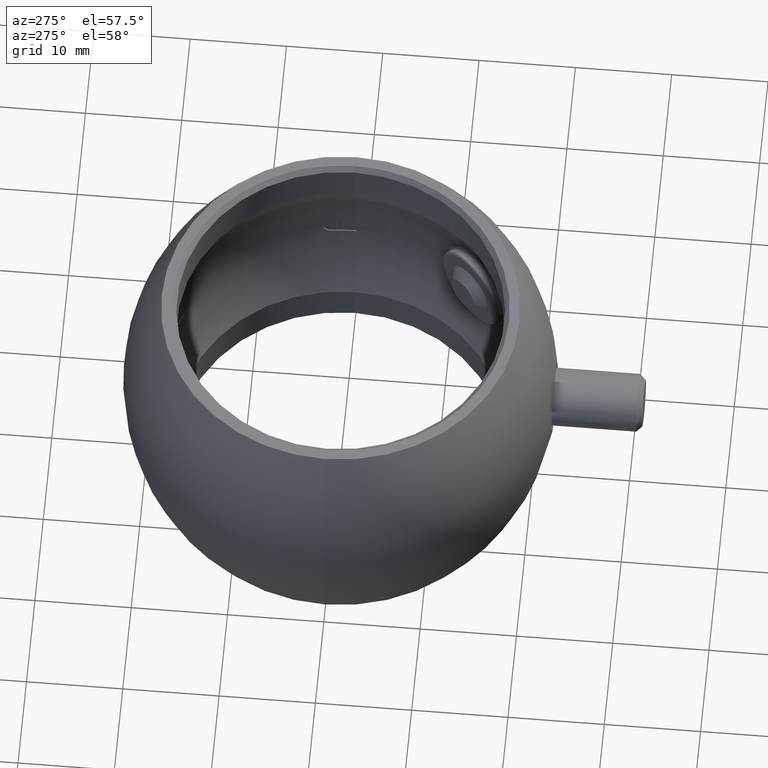
[diagram: clean part render]
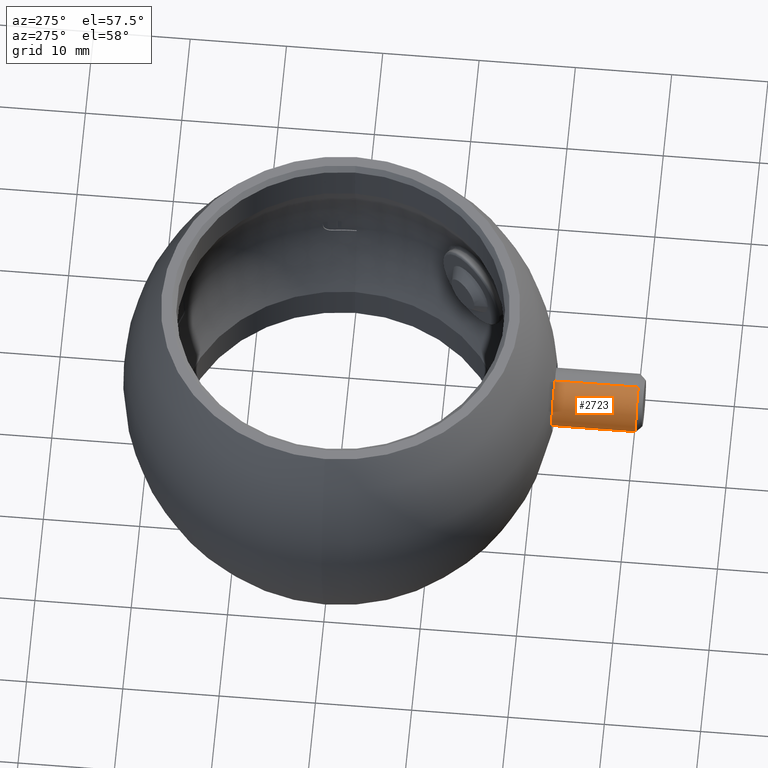
[diagram: same view with one face highlighted and labeled with its STEP entity id]
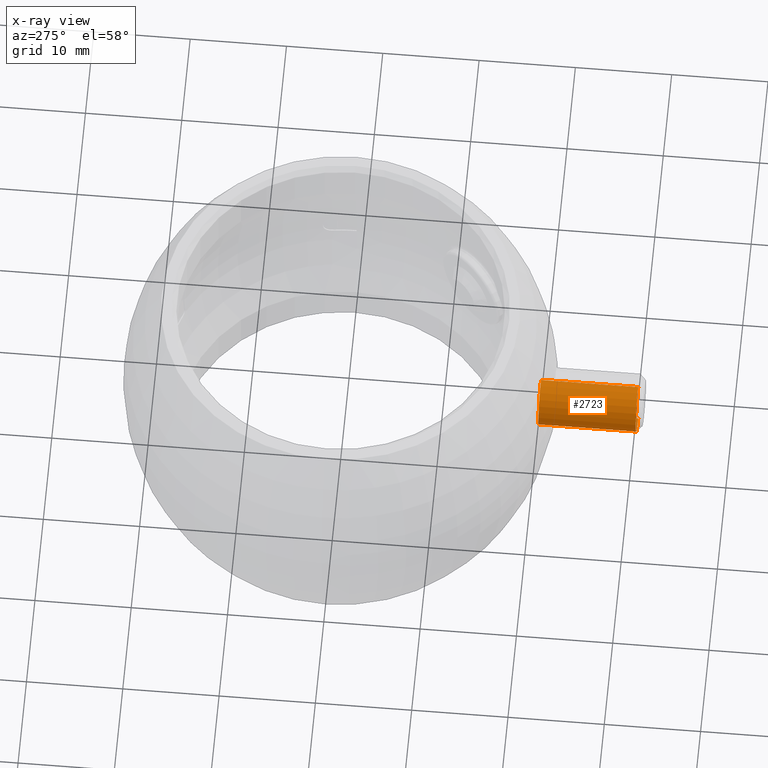
[diagram: x-ray of the same camera — body ghosted, the highlighted face saturated]
A machine part, auxiliary view. The second image highlights one B-rep face of the part: STEP entity #2723.
The next image is the same camera in x-ray: the body ghosted, the highlighted face saturated — about 0% of this face is hidden behind the body in this view.
In plain terms, the highlighted cylindrical surface (edge-blend (fillet) strip) has radius 3 mm, axis along (-0, 1, 0).
Its self-contained STEP definition (entity closure, byte-faithful):
#455 = DIRECTION ( 'NONE',  ( 0.000000000000000000, 1.000000000000000000, 1.445602896647341135E-16 ) ) ;
#1367 = VERTEX_POINT ( 'NONE', #7340 ) ;
#1592 = AXIS2_PLACEMENT_3D ( 'NONE', #7042, #14130, #3911 ) ;
#2530 = CYLINDRICAL_SURFACE ( 'NONE', #20245, 2.999999999999998224 ) ;
#2723 = ADVANCED_FACE ( 'NONE', ( #8921 ), #2530, .T. ) ;
#3269 = ORIENTED_EDGE ( 'NONE', *, *, #18690, .T. ) ;
#3911 = DIRECTION ( 'NONE',  ( 0.000000000000000000, -1.000000000000000000, 0.000000000000000000 ) ) ;
#6374 = VERTEX_POINT ( 'NONE', #10491 ) ;
#6940 = CARTESIAN_POINT ( 'NONE',  ( 0.000000000000000000, 2.999999999999996003, 13.39999999999999680 ) ) ;
#7042 = CARTESIAN_POINT ( 'NONE',  ( 0.000000000000000000, -1.641026710857452918E-15, 13.39999999999999680 ) ) ;
#7334 = CARTESIAN_POINT ( 'NONE',  ( 0.000000000000000000, -4.041334437186268961E-16, 3.300000000000003375 ) ) ;
#7340 = CARTESIAN_POINT ( 'NONE',  ( 0.000000000000000000, 2.999999999999995559, 3.300000000000003819 ) ) ;
#7429 = CARTESIAN_POINT ( 'NONE',  ( 5.510910596163086597E-16, -2.999999999999996447, 3.300000000000002931 ) ) ;
#7748 = ORIENTED_EDGE ( 'NONE', *, *, #7867, .F. ) ;
#7771 = VECTOR ( 'NONE', #10957, 1000.000000000000000 ) ;
#7867 = EDGE_CURVE ( 'NONE', #6374, #14544, #14355, .T. ) ;
#7942 = CARTESIAN_POINT ( 'NONE',  ( 0.000000000000000000, 0.000000000000000000, 0.000000000000000000 ) ) ;
#8486 = DIRECTION ( 'NONE',  ( -0.000000000000000000, 1.224646799147353207E-16, -1.000000000000000000 ) ) ;
#8724 = CIRCLE ( 'NONE', #9143, 2.999999999999996003 ) ;
#8921 = FACE_OUTER_BOUND ( 'NONE', #14624, .T. ) ;
#9143 = AXIS2_PLACEMENT_3D ( 'NONE', #7334, #12444, #455 ) ;
#9514 = CIRCLE ( 'NONE', #1592, 2.999999999999998224 ) ;
#10491 = CARTESIAN_POINT ( 'NONE',  ( 3.673940397442057403E-16, -3.000000000000000444, 13.39999999999999680 ) ) ;
#10957 = DIRECTION ( 'NONE',  ( -0.000000000000000000, 1.224646799147353207E-16, -1.000000000000000000 ) ) ;
#11889 = EDGE_CURVE ( 'NONE', #14544, #1367, #8724, .T. ) ;
#12068 = EDGE_CURVE ( 'NONE', #6374, #16597, #9514, .T. ) ;
#12444 = DIRECTION ( 'NONE',  ( -0.000000000000000000, 1.224646799147352961E-16, -1.000000000000000000 ) ) ;
#13893 = ORIENTED_EDGE ( 'NONE', *, *, #12068, .T. ) ;
#14130 = DIRECTION ( 'NONE',  ( -0.000000000000000000, 1.224646799147353207E-16, -1.000000000000000000 ) ) ;
#14192 = LINE ( 'NONE', #15791, #7771 ) ;
#14355 = LINE ( 'NONE', #15832, #19701 ) ;
#14544 = VERTEX_POINT ( 'NONE', #7429 ) ;
#14624 = EDGE_LOOP ( 'NONE', ( #7748, #13893, #3269, #19914 ) ) ;
#15044 = DIRECTION ( 'NONE',  ( 0.000000000000000000, 1.000000000000000000, 1.224646799147353454E-16 ) ) ;
#15791 = CARTESIAN_POINT ( 'NONE',  ( 0.000000000000000000, 2.999999999999998224, 3.673940397442057896E-16 ) ) ;
#15832 = CARTESIAN_POINT ( 'NONE',  ( 3.673940397442057896E-16, -2.999999999999998224, -3.673940397442057896E-16 ) ) ;
#16597 = VERTEX_POINT ( 'NONE', #6940 ) ;
#17571 = DIRECTION ( 'NONE',  ( -0.000000000000000000, 1.224646799147353207E-16, -1.000000000000000000 ) ) ;
#18690 = EDGE_CURVE ( 'NONE', #16597, #1367, #14192, .T. ) ;
#19701 = VECTOR ( 'NONE', #17571, 1000.000000000000000 ) ;
#19914 = ORIENTED_EDGE ( 'NONE', *, *, #11889, .F. ) ;
#20245 = AXIS2_PLACEMENT_3D ( 'NONE', #7942, #8486, #15044 ) ;